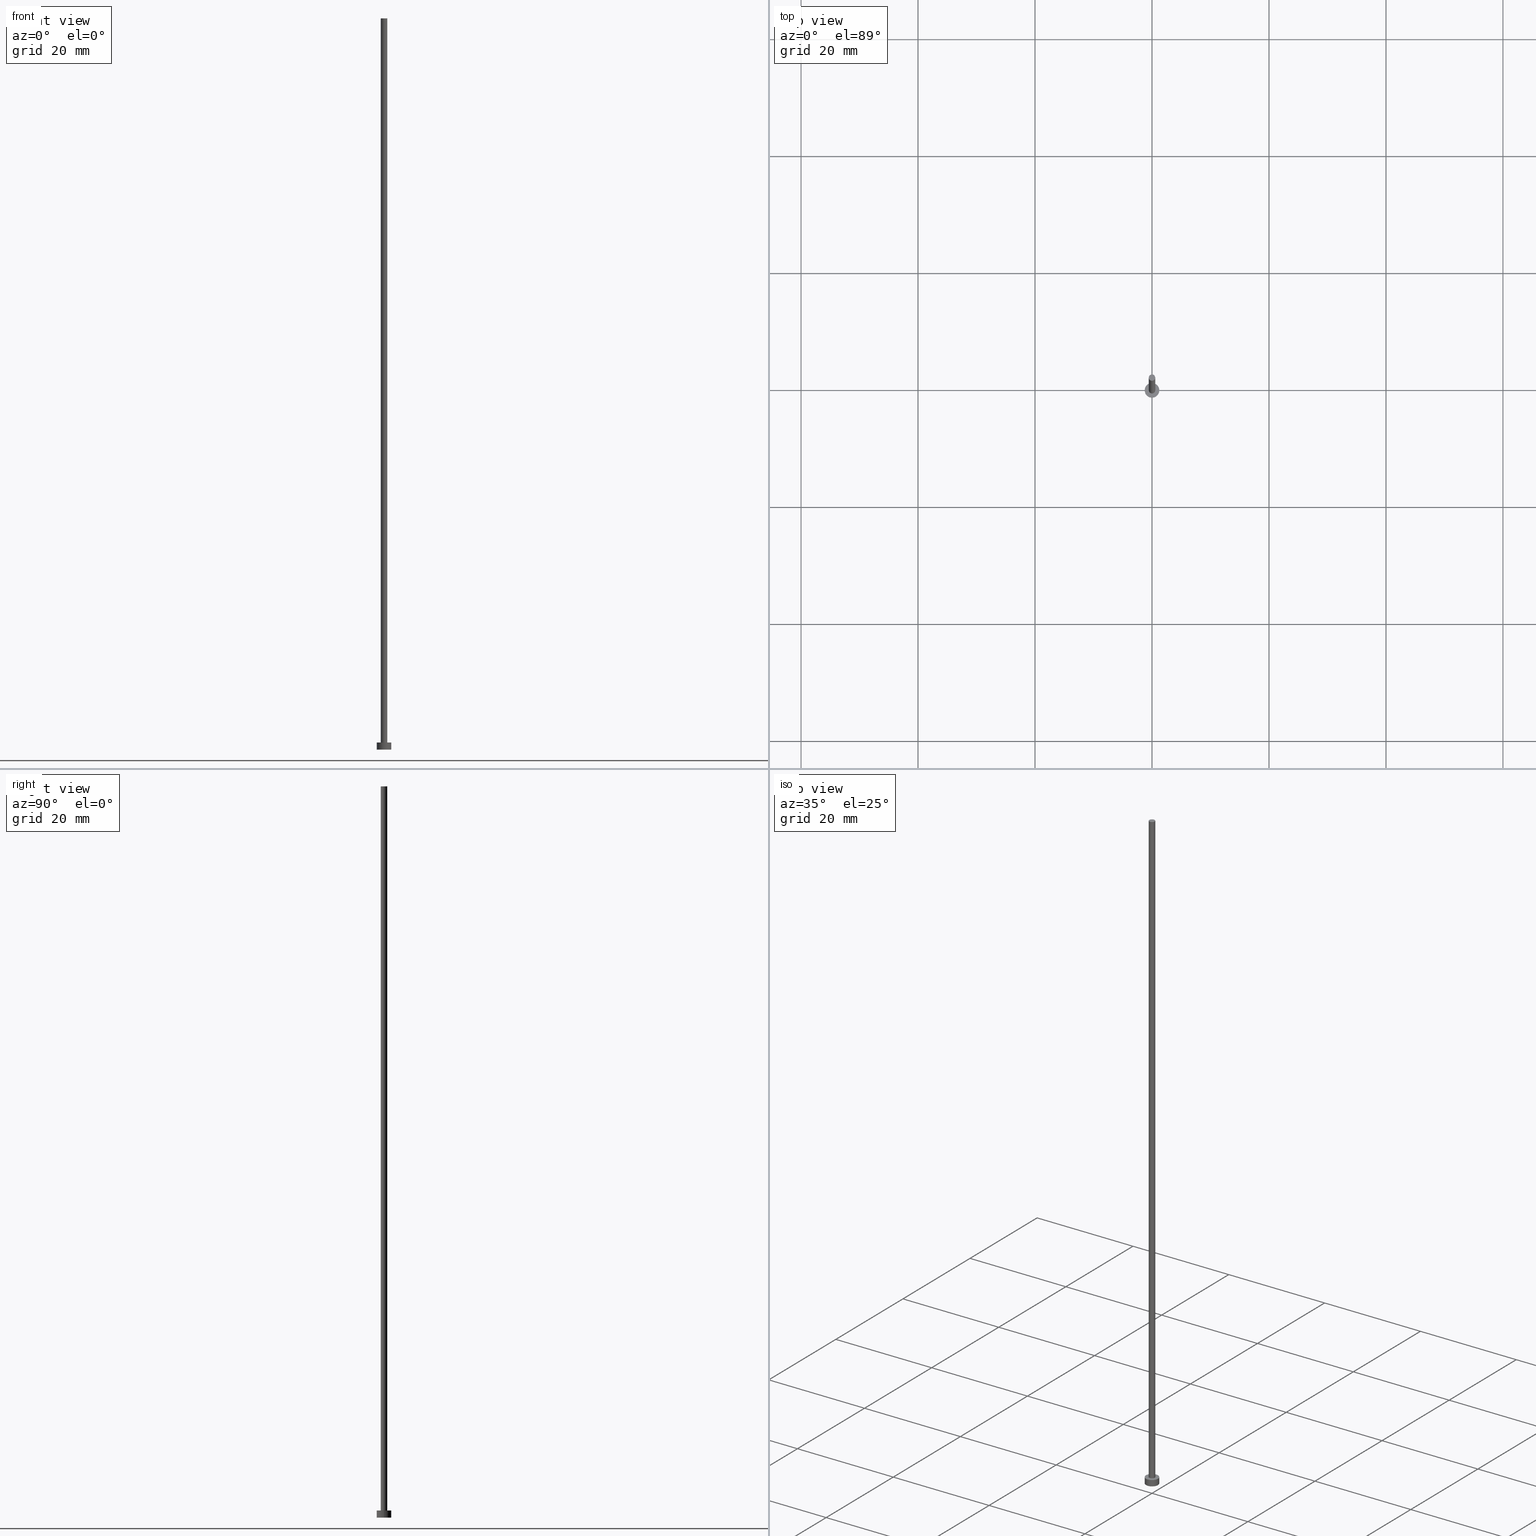
[diagram: canonical four-view strip — front | top / right | iso, engineering-drawing reading convention]
A machine part, canonical four-view strip (front | top / right | iso — engineering-drawing reading convention). The complete STEP part file that produces these views, byte-faithful:
ISO-10303-21;
HEADER;
FILE_DESCRIPTION (( 'STEP AP203' ),
    '1' );
FILE_NAME ('17de.STEP',
    '2023-02-12T12:59:51',
    ( '' ),
    ( '' ),
    'SwSTEP 2.0',
    'SolidWorks 2019',
    '' );
FILE_SCHEMA (( 'CONFIG_CONTROL_DESIGN' ));
ENDSEC;

DATA;
#1 = DIRECTION ( 'NONE',  ( 0.000000000000000000, 0.000000000000000000, 1.000000000000000000 ) ) ;
#2 = DIRECTION ( 'NONE',  ( 1.000000000000000000, 0.000000000000000000, -0.000000000000000000 ) ) ;
#3 = VERTEX_POINT ( 'NONE', #113 ) ;
#4 = CARTESIAN_POINT ( 'NONE',  ( 0.000000000000000000, 0.000000000000000000, 1.199999999999999956 ) ) ;
#5 = LOCAL_TIME ( 13, 59, 51.00000000000000000, #241 ) ;
#6 = PERSON_AND_ORGANIZATION ( #149, #98 ) ;
#7 = VERTEX_POINT ( 'NONE', #173 ) ;
#8 = APPROVAL_PERSON_ORGANIZATION ( #102, #68, #197 ) ;
#9 = CALENDAR_DATE ( 2023, 12, 2 ) ;
#10 = FACE_OUTER_BOUND ( 'NONE', #48, .T. ) ;
#11 = FACE_OUTER_BOUND ( 'NONE', #96, .T. ) ;
#12 = LOCAL_TIME ( 13, 59, 51.00000000000000000, #72 ) ;
#13 = CARTESIAN_POINT ( 'NONE',  ( 0.000000000000000000, 0.000000000000000000, 0.000000000000000000 ) ) ;
#14 = EDGE_CURVE ( 'NONE', #196, #90, #37, .T. ) ;
#15 = DIRECTION ( 'NONE',  ( 1.000000000000000000, 0.000000000000000000, 0.000000000000000000 ) ) ;
#16 = CARTESIAN_POINT ( 'NONE',  ( 0.000000000000000000, 0.000000000000000000, 1.199999999999999956 ) ) ;
#17 = AXIS2_PLACEMENT_3D ( 'NONE', #62, #146, #131 ) ;
#18 = ORIENTED_EDGE ( 'NONE', *, *, #39, .T. ) ;
#19 = ADVANCED_FACE ( 'NONE', ( #69, #240 ), #214, .T. ) ;
#20 = ORIENTED_EDGE ( 'NONE', *, *, #164, .F. ) ;
#21 = ORIENTED_EDGE ( 'NONE', *, *, #237, .F. ) ;
#22 = ORIENTED_EDGE ( 'NONE', *, *, #156, .T. ) ;
#23 = ORIENTED_EDGE ( 'NONE', *, *, #156, .F. ) ;
#24 = DIRECTION ( 'NONE',  ( 1.000000000000000000, 0.000000000000000000, 0.000000000000000000 ) ) ;
#25 = CARTESIAN_POINT ( 'NONE',  ( 0.000000000000000000, 0.000000000000000000, 0.000000000000000000 ) ) ;
#26 = ADVANCED_FACE ( 'NONE', ( #10 ), #140, .F. ) ;
#27 = DIRECTION ( 'NONE',  ( 0.000000000000000000, 0.000000000000000000, 1.000000000000000000 ) ) ;
#28 = CARTESIAN_POINT ( 'NONE',  ( 0.5500000000000000444, 6.735557395310442516E-17, 125.0000000000000000 ) ) ;
#29 = DATE_AND_TIME ( #163, #127 ) ;
#30 =( LENGTH_UNIT ( ) NAMED_UNIT ( * ) SI_UNIT ( .MILLI., .METRE. ) );
#31 = PERSON_AND_ORGANIZATION ( #149, #98 ) ;
#32 = CYLINDRICAL_SURFACE ( 'NONE', #199, 0.5500000000000000444 ) ;
#33 = EDGE_CURVE ( 'NONE', #78, #242, #134, .T. ) ;
#34 = EDGE_LOOP ( 'NONE', ( #70, #234 ) ) ;
#35 = CARTESIAN_POINT ( 'NONE',  ( 0.000000000000000000, 0.000000000000000000, 1.199999999999999956 ) ) ;
#36 = ORIENTED_EDGE ( 'NONE', *, *, #104, .T. ) ;
#37 = CIRCLE ( 'NONE', #190, 0.5500000000000000444 ) ;
#38 = AXIS2_PLACEMENT_3D ( 'NONE', #84, #235, #233 ) ;
#39 = EDGE_CURVE ( 'NONE', #242, #78, #114, .T. ) ;
#40 = APPLICATION_PROTOCOL_DEFINITION ( 'international standard', 'config_control_design', 1994, #186 ) ;
#41 = DIRECTION ( 'NONE',  ( 1.000000000000000000, 0.000000000000000000, 0.000000000000000000 ) ) ;
#42 = CARTESIAN_POINT ( 'NONE',  ( -1.250000000000000000, 0.000000000000000000, 1.199999999999999956 ) ) ;
#43 = CARTESIAN_POINT ( 'NONE',  ( -0.5500000000000000444, 0.000000000000000000, 1.199999999999999956 ) ) ;
#44 = CLOSED_SHELL ( 'NONE', ( #194, #79, #182, #19, #26, #57, #254 ) ) ;
#45 = PERSON_AND_ORGANIZATION ( #149, #98 ) ;
#46 = PLANE ( 'NONE',  #236 ) ;
#47 = DIRECTION ( 'NONE',  ( -1.000000000000000000, 0.000000000000000000, 0.000000000000000000 ) ) ;
#48 = EDGE_LOOP ( 'NONE', ( #51, #115 ) ) ;
#49 = DATE_AND_TIME ( #172, #5 ) ;
#50 =( NAMED_UNIT ( * ) SI_UNIT ( $, .STERADIAN. ) SOLID_ANGLE_UNIT ( ) );
#51 = ORIENTED_EDGE ( 'NONE', *, *, #33, .F. ) ;
#52 = EDGE_CURVE ( 'NONE', #3, #7, #206, .T. ) ;
#53 = ORIENTED_EDGE ( 'NONE', *, *, #137, .F. ) ;
#54 = DATE_AND_TIME ( #9, #151 ) ;
#55 = PERSON_AND_ORGANIZATION_ROLE ( 'creator' ) ;
#56 = AXIS2_PLACEMENT_3D ( 'NONE', #228, #250, #15 ) ;
#57 = ADVANCED_FACE ( 'NONE', ( #59 ), #75, .T. ) ;
#58 = CIRCLE ( 'NONE', #38, 0.5500000000000000444 ) ;
#59 = FACE_OUTER_BOUND ( 'NONE', #168, .T. ) ;
#60 = DESIGN_CONTEXT ( 'detailed design', #138, 'design' ) ;
#61 = APPROVAL_STATUS ( 'not_yet_approved' ) ;
#62 = CARTESIAN_POINT ( 'NONE',  ( 0.000000000000000000, 0.000000000000000000, 1.199999999999999956 ) ) ;
#63 = VECTOR ( 'NONE', #183, 1000.000000000000000 ) ;
#64 = CIRCLE ( 'NONE', #175, 1.250000000000000000 ) ;
#65 = CARTESIAN_POINT ( 'NONE',  ( 0.5500000000000000444, 6.735557395310442516E-17, 1.199999999999999956 ) ) ;
#66 = CARTESIAN_POINT ( 'NONE',  ( 0.000000000000000000, 0.000000000000000000, 125.0000000000000000 ) ) ;
#67 = CC_DESIGN_APPROVAL ( #230, ( #170 ) ) ;
#68 = APPROVAL ( #166, 'NEUR�EN�' ) ;
#69 = FACE_BOUND ( 'NONE', #83, .T. ) ;
#70 = ORIENTED_EDGE ( 'NONE', *, *, #164, .T. ) ;
#71 = APPROVAL_PERSON_ORGANIZATION ( #121, #230, #99 ) ;
#72 = COORDINATED_UNIVERSAL_TIME_OFFSET ( 1, 0, .AHEAD. ) ;
#73 = VERTEX_POINT ( 'NONE', #28 ) ;
#74 = CC_DESIGN_PERSON_AND_ORGANIZATION_ASSIGNMENT ( #45, #205, ( #170 ) ) ;
#75 = CYLINDRICAL_SURFACE ( 'NONE', #218, 0.5500000000000000444 ) ;
#76 = DIRECTION ( 'NONE',  ( 1.000000000000000000, 0.000000000000000000, 0.000000000000000000 ) ) ;
#77 = CARTESIAN_POINT ( 'NONE',  ( 0.000000000000000000, 0.000000000000000000, 0.000000000000000000 ) ) ;
#78 = VERTEX_POINT ( 'NONE', #227 ) ;
#79 = ADVANCED_FACE ( 'NONE', ( #11 ), #103, .T. ) ;
#80 = APPROVAL_DATE_TIME ( #222, #230 ) ;
#81 = DIRECTION ( 'NONE',  ( 1.000000000000000000, 0.000000000000000000, -0.000000000000000000 ) ) ;
#82 =( NAMED_UNIT ( * ) PLANE_ANGLE_UNIT ( ) SI_UNIT ( $, .RADIAN. ) );
#83 = EDGE_LOOP ( 'NONE', ( #21, #165 ) ) ;
#84 = CARTESIAN_POINT ( 'NONE',  ( 0.000000000000000000, 0.000000000000000000, 125.0000000000000000 ) ) ;
#85 = AXIS2_PLACEMENT_3D ( 'NONE', #35, #91, #81 ) ;
#86 = VECTOR ( 'NONE', #193, 1000.000000000000000 ) ;
#87 = DIRECTION ( 'NONE',  ( -0.000000000000000000, -0.000000000000000000, -1.000000000000000000 ) ) ;
#88 = PRODUCT ( '17de', '17de', '', ( #184 ) ) ;
#89 = PERSON_AND_ORGANIZATION_ROLE ( 'classification_officer' ) ;
#90 = VERTEX_POINT ( 'NONE', #43 ) ;
#91 = DIRECTION ( 'NONE',  ( 0.000000000000000000, 0.000000000000000000, 1.000000000000000000 ) ) ;
#92 = AXIS2_PLACEMENT_3D ( 'NONE', #126, #162, #41 ) ;
#93 = DIRECTION ( 'NONE',  ( 1.000000000000000000, 0.000000000000000000, 0.000000000000000000 ) ) ;
#94 = ORIENTED_EDGE ( 'NONE', *, *, #33, .T. ) ;
#95 = CC_DESIGN_PERSON_AND_ORGANIZATION_ASSIGNMENT ( #6, #124, ( #88 ) ) ;
#96 = EDGE_LOOP ( 'NONE', ( #207, #247, #18, #112 ) ) ;
#97 = APPLICATION_PROTOCOL_DEFINITION ( 'international standard', 'config_control_design', 1994, #138 ) ;
#98 = ORGANIZATION ( 'NEUR�EN�', 'NEUR�EN�', '' ) ;
#99 = APPROVAL_ROLE ( '' ) ;
#100 = CARTESIAN_POINT ( 'NONE',  ( 0.5500000000000000444, 6.735557395310442516E-17, 125.0000000000000000 ) ) ;
#101 = UNCERTAINTY_MEASURE_WITH_UNIT (LENGTH_MEASURE( 1.000000000000000082E-05 ), #30, 'distance_accuracy_value', 'NONE');
#102 = PERSON_AND_ORGANIZATION ( #149, #98 ) ;
#103 = CYLINDRICAL_SURFACE ( 'NONE', #229, 1.250000000000000000 ) ;
#104 = EDGE_CURVE ( 'NONE', #73, #217, #245, .T. ) ;
#105 = CARTESIAN_POINT ( 'NONE',  ( 0.000000000000000000, 0.000000000000000000, 1.199999999999999956 ) ) ;
#106 = CARTESIAN_POINT ( 'NONE',  ( -0.5500000000000000444, 0.000000000000000000, 125.0000000000000000 ) ) ;
#107 = AXIS2_PLACEMENT_3D ( 'NONE', #13, #225, #201 ) ;
#108 = CC_DESIGN_SECURITY_CLASSIFICATION ( #226, ( #170 ) ) ;
#109 = CYLINDRICAL_SURFACE ( 'NONE', #154, 1.250000000000000000 ) ;
#110 = CC_DESIGN_DATE_AND_TIME_ASSIGNMENT ( #54, #180, ( #219 ) ) ;
#111 = CC_DESIGN_APPROVAL ( #169, ( #219 ) ) ;
#112 = ORIENTED_EDGE ( 'NONE', *, *, #119, .F. ) ;
#113 = CARTESIAN_POINT ( 'NONE',  ( 1.250000000000000000, 1.530808498934191571E-16, 1.199999999999999956 ) ) ;
#114 = CIRCLE ( 'NONE', #56, 1.250000000000000000 ) ;
#115 = ORIENTED_EDGE ( 'NONE', *, *, #39, .F. ) ;
#116 =( GEOMETRIC_REPRESENTATION_CONTEXT ( 3 ) GLOBAL_UNCERTAINTY_ASSIGNED_CONTEXT ( ( #101 ) ) GLOBAL_UNIT_ASSIGNED_CONTEXT ( ( #30, #82, #50 ) ) REPRESENTATION_CONTEXT ( 'NONE', 'WORKASPACE' ) );
#117 = EDGE_LOOP ( 'NONE', ( #192, #36 ) ) ;
#118 = DIRECTION ( 'NONE',  ( 0.000000000000000000, 0.000000000000000000, 1.000000000000000000 ) ) ;
#119 = EDGE_CURVE ( 'NONE', #7, #78, #142, .T. ) ;
#120 = ADVANCED_BREP_SHAPE_REPRESENTATION ( '17de', ( #243, #159 ), #116 ) ;
#121 = PERSON_AND_ORGANIZATION ( #149, #98 ) ;
#122 = DIRECTION ( 'NONE',  ( -0.000000000000000000, -0.000000000000000000, -1.000000000000000000 ) ) ;
#123 = LINE ( 'NONE', #129, #210 ) ;
#124 = PERSON_AND_ORGANIZATION_ROLE ( 'design_owner' ) ;
#125 = CC_DESIGN_PERSON_AND_ORGANIZATION_ASSIGNMENT ( #200, #55, ( #219 ) ) ;
#126 = CARTESIAN_POINT ( 'NONE',  ( 0.000000000000000000, 0.000000000000000000, 1.199999999999999956 ) ) ;
#127 = LOCAL_TIME ( 13, 59, 51.00000000000000000, #213 ) ;
#128 = DATE_TIME_ROLE ( 'classification_date' ) ;
#129 = CARTESIAN_POINT ( 'NONE',  ( 1.250000000000000000, 1.530808498934191571E-16, 1.199999999999999956 ) ) ;
#130 = CIRCLE ( 'NONE', #17, 0.5500000000000000444 ) ;
#131 = DIRECTION ( 'NONE',  ( 1.000000000000000000, 0.000000000000000000, 0.000000000000000000 ) ) ;
#132 = LINE ( 'NONE', #106, #86 ) ;
#133 = ORIENTED_EDGE ( 'NONE', *, *, #119, .T. ) ;
#134 = CIRCLE ( 'NONE', #141, 1.250000000000000000 ) ;
#135 = DIRECTION ( 'NONE',  ( 0.000000000000000000, 0.000000000000000000, 1.000000000000000000 ) ) ;
#136 = SECURITY_CLASSIFICATION_LEVEL ( 'unclassified' ) ;
#137 = EDGE_CURVE ( 'NONE', #73, #196, #203, .T. ) ;
#138 = APPLICATION_CONTEXT ( 'configuration controlled 3d designs of mechanical parts and assemblies' ) ;
#139 = CALENDAR_DATE ( 2023, 12, 2 ) ;
#140 = PLANE ( 'NONE',  #107 ) ;
#141 = AXIS2_PLACEMENT_3D ( 'NONE', #77, #27, #76 ) ;
#142 = LINE ( 'NONE', #42, #178 ) ;
#143 = APPROVAL_PERSON_ORGANIZATION ( #224, #169, #249 ) ;
#144 = DIRECTION ( 'NONE',  ( -1.000000000000000000, 0.000000000000000000, 0.000000000000000000 ) ) ;
#145 = SHAPE_DEFINITION_REPRESENTATION ( #174, #120 ) ;
#146 = DIRECTION ( 'NONE',  ( 0.000000000000000000, 0.000000000000000000, 1.000000000000000000 ) ) ;
#147 = AXIS2_PLACEMENT_3D ( 'NONE', #253, #118, #24 ) ;
#148 = FACE_OUTER_BOUND ( 'NONE', #221, .T. ) ;
#149 = PERSON ( 'NEUR�EN�', 'NEUR�EN�', 'NEUR�EN�', ('NEUR�EN�'), ('NEUR�EN�'), ('NEUR�EN�') ) ;
#150 = DIRECTION ( 'NONE',  ( -0.000000000000000000, -0.000000000000000000, -1.000000000000000000 ) ) ;
#151 = LOCAL_TIME ( 13, 59, 51.00000000000000000, #179 ) ;
#152 = EDGE_CURVE ( 'NONE', #3, #242, #123, .T. ) ;
#153 = ORIENTED_EDGE ( 'NONE', *, *, #152, .F. ) ;
#154 = AXIS2_PLACEMENT_3D ( 'NONE', #16, #195, #188 ) ;
#155 = ORIENTED_EDGE ( 'NONE', *, *, #104, .F. ) ;
#156 = EDGE_CURVE ( 'NONE', #217, #90, #132, .T. ) ;
#157 = CALENDAR_DATE ( 2023, 12, 2 ) ;
#158 = EDGE_LOOP ( 'NONE', ( #153, #20, #133, #94 ) ) ;
#159 = AXIS2_PLACEMENT_3D ( 'NONE', #25, #252, #177 ) ;
#160 = CC_DESIGN_PERSON_AND_ORGANIZATION_ASSIGNMENT ( #189, #89, ( #226 ) ) ;
#161 = DIRECTION ( 'NONE',  ( -0.000000000000000000, -0.000000000000000000, -1.000000000000000000 ) ) ;
#162 = DIRECTION ( 'NONE',  ( 0.000000000000000000, 0.000000000000000000, 1.000000000000000000 ) ) ;
#163 = CALENDAR_DATE ( 2023, 12, 2 ) ;
#164 = EDGE_CURVE ( 'NONE', #7, #3, #64, .T. ) ;
#165 = ORIENTED_EDGE ( 'NONE', *, *, #14, .F. ) ;
#166 = APPROVAL_STATUS ( 'not_yet_approved' ) ;
#167 = CARTESIAN_POINT ( 'NONE',  ( 0.000000000000000000, 0.000000000000000000, 125.0000000000000000 ) ) ;
#168 = EDGE_LOOP ( 'NONE', ( #53, #176, #22, #198 ) ) ;
#169 = APPROVAL ( #61, 'NEUR�EN�' ) ;
#170 = PRODUCT_DEFINITION_FORMATION_WITH_SPECIFIED_SOURCE ( 'LIBOVOLN�', '', #88, .NOT_KNOWN. ) ;
#171 = CARTESIAN_POINT ( 'NONE',  ( -0.5500000000000000444, 0.000000000000000000, 125.0000000000000000 ) ) ;
#172 = CALENDAR_DATE ( 2023, 12, 2 ) ;
#173 = CARTESIAN_POINT ( 'NONE',  ( -1.250000000000000000, 0.000000000000000000, 1.199999999999999956 ) ) ;
#174 = PRODUCT_DEFINITION_SHAPE ( 'NONE', 'NONE',  #219 ) ;
#175 = AXIS2_PLACEMENT_3D ( 'NONE', #105, #1, #209 ) ;
#176 = ORIENTED_EDGE ( 'NONE', *, *, #212, .F. ) ;
#177 = DIRECTION ( 'NONE',  ( 1.000000000000000000, 0.000000000000000000, 0.000000000000000000 ) ) ;
#178 = VECTOR ( 'NONE', #122, 1000.000000000000000 ) ;
#179 = COORDINATED_UNIVERSAL_TIME_OFFSET ( 1, 0, .AHEAD. ) ;
#180 = DATE_TIME_ROLE ( 'creation_date' ) ;
#181 = COORDINATED_UNIVERSAL_TIME_OFFSET ( 1, 0, .AHEAD. ) ;
#182 = ADVANCED_FACE ( 'NONE', ( #208 ), #109, .T. ) ;
#183 = DIRECTION ( 'NONE',  ( -0.000000000000000000, -0.000000000000000000, -1.000000000000000000 ) ) ;
#184 = MECHANICAL_CONTEXT ( 'NONE', #186, 'mechanical' ) ;
#185 = LOCAL_TIME ( 13, 59, 51.00000000000000000, #181 ) ;
#186 = APPLICATION_CONTEXT ( 'configuration controlled 3d designs of mechanical parts and assemblies' ) ;
#187 = CARTESIAN_POINT ( 'NONE',  ( 0.000000000000000000, 0.000000000000000000, 1.199999999999999956 ) ) ;
#188 = DIRECTION ( 'NONE',  ( -1.000000000000000000, 0.000000000000000000, 0.000000000000000000 ) ) ;
#189 = PERSON_AND_ORGANIZATION ( #149, #98 ) ;
#190 = AXIS2_PLACEMENT_3D ( 'NONE', #4, #135, #93 ) ;
#191 = DIRECTION ( 'NONE',  ( 0.000000000000000000, 0.000000000000000000, 1.000000000000000000 ) ) ;
#192 = ORIENTED_EDGE ( 'NONE', *, *, #212, .T. ) ;
#193 = DIRECTION ( 'NONE',  ( -0.000000000000000000, -0.000000000000000000, -1.000000000000000000 ) ) ;
#194 = ADVANCED_FACE ( 'NONE', ( #148 ), #32, .T. ) ;
#195 = DIRECTION ( 'NONE',  ( -0.000000000000000000, -0.000000000000000000, -1.000000000000000000 ) ) ;
#196 = VERTEX_POINT ( 'NONE', #65 ) ;
#197 = APPROVAL_ROLE ( '' ) ;
#198 = ORIENTED_EDGE ( 'NONE', *, *, #237, .T. ) ;
#199 = AXIS2_PLACEMENT_3D ( 'NONE', #66, #87, #47 ) ;
#200 = PERSON_AND_ORGANIZATION ( #149, #98 ) ;
#201 = DIRECTION ( 'NONE',  ( 1.000000000000000000, 0.000000000000000000, -0.000000000000000000 ) ) ;
#202 = APPROVAL_STATUS ( 'not_yet_approved' ) ;
#203 = LINE ( 'NONE', #100, #63 ) ;
#204 = DIRECTION ( 'NONE',  ( -0.000000000000000000, -0.000000000000000000, -1.000000000000000000 ) ) ;
#205 = PERSON_AND_ORGANIZATION_ROLE ( 'creator' ) ;
#206 = CIRCLE ( 'NONE', #92, 1.250000000000000000 ) ;
#207 = ORIENTED_EDGE ( 'NONE', *, *, #52, .F. ) ;
#208 = FACE_OUTER_BOUND ( 'NONE', #158, .T. ) ;
#209 = DIRECTION ( 'NONE',  ( 1.000000000000000000, 0.000000000000000000, 0.000000000000000000 ) ) ;
#210 = VECTOR ( 'NONE', #150, 1000.000000000000000 ) ;
#211 = ORIENTED_EDGE ( 'NONE', *, *, #14, .T. ) ;
#212 = EDGE_CURVE ( 'NONE', #217, #73, #58, .T. ) ;
#213 = COORDINATED_UNIVERSAL_TIME_OFFSET ( 1, 0, .AHEAD. ) ;
#214 = PLANE ( 'NONE',  #85 ) ;
#215 = PRODUCT_RELATED_PRODUCT_CATEGORY ( 'detail', '', ( #88 ) ) ;
#216 = PERSON_AND_ORGANIZATION_ROLE ( 'design_supplier' ) ;
#217 = VERTEX_POINT ( 'NONE', #171 ) ;
#218 = AXIS2_PLACEMENT_3D ( 'NONE', #223, #204, #144 ) ;
#219 = PRODUCT_DEFINITION ( 'NEZN�M�', '', #170, #60 ) ;
#220 = CC_DESIGN_APPROVAL ( #68, ( #226 ) ) ;
#221 = EDGE_LOOP ( 'NONE', ( #155, #244, #211, #23 ) ) ;
#222 = DATE_AND_TIME ( #139, #185 ) ;
#223 = CARTESIAN_POINT ( 'NONE',  ( 0.000000000000000000, 0.000000000000000000, 125.0000000000000000 ) ) ;
#224 = PERSON_AND_ORGANIZATION ( #149, #98 ) ;
#225 = DIRECTION ( 'NONE',  ( 0.000000000000000000, 0.000000000000000000, 1.000000000000000000 ) ) ;
#226 = SECURITY_CLASSIFICATION ( '', '', #136 ) ;
#227 = CARTESIAN_POINT ( 'NONE',  ( -1.250000000000000000, 0.000000000000000000, 0.000000000000000000 ) ) ;
#228 = CARTESIAN_POINT ( 'NONE',  ( 0.000000000000000000, 0.000000000000000000, 0.000000000000000000 ) ) ;
#229 = AXIS2_PLACEMENT_3D ( 'NONE', #187, #161, #255 ) ;
#230 = APPROVAL ( #202, 'NEUR�EN�' ) ;
#231 = FACE_OUTER_BOUND ( 'NONE', #117, .T. ) ;
#232 = CARTESIAN_POINT ( 'NONE',  ( 1.250000000000000000, 1.530808498934191571E-16, 0.000000000000000000 ) ) ;
#233 = DIRECTION ( 'NONE',  ( 1.000000000000000000, 0.000000000000000000, 0.000000000000000000 ) ) ;
#234 = ORIENTED_EDGE ( 'NONE', *, *, #52, .T. ) ;
#235 = DIRECTION ( 'NONE',  ( 0.000000000000000000, 0.000000000000000000, 1.000000000000000000 ) ) ;
#236 = AXIS2_PLACEMENT_3D ( 'NONE', #167, #191, #2 ) ;
#237 = EDGE_CURVE ( 'NONE', #90, #196, #130, .T. ) ;
#238 = APPROVAL_DATE_TIME ( #29, #68 ) ;
#239 = CC_DESIGN_DATE_AND_TIME_ASSIGNMENT ( #49, #128, ( #226 ) ) ;
#240 = FACE_OUTER_BOUND ( 'NONE', #34, .T. ) ;
#241 = COORDINATED_UNIVERSAL_TIME_OFFSET ( 1, 0, .AHEAD. ) ;
#242 = VERTEX_POINT ( 'NONE', #232 ) ;
#243 = MANIFOLD_SOLID_BREP ( 'P�idat vysunut�m3', #44 ) ;
#244 = ORIENTED_EDGE ( 'NONE', *, *, #137, .T. ) ;
#245 = CIRCLE ( 'NONE', #147, 0.5500000000000000444 ) ;
#246 = DATE_AND_TIME ( #157, #12 ) ;
#247 = ORIENTED_EDGE ( 'NONE', *, *, #152, .T. ) ;
#248 = APPROVAL_DATE_TIME ( #246, #169 ) ;
#249 = APPROVAL_ROLE ( '' ) ;
#250 = DIRECTION ( 'NONE',  ( 0.000000000000000000, 0.000000000000000000, 1.000000000000000000 ) ) ;
#251 = CC_DESIGN_PERSON_AND_ORGANIZATION_ASSIGNMENT ( #31, #216, ( #170 ) ) ;
#252 = DIRECTION ( 'NONE',  ( 0.000000000000000000, 0.000000000000000000, 1.000000000000000000 ) ) ;
#253 = CARTESIAN_POINT ( 'NONE',  ( 0.000000000000000000, 0.000000000000000000, 125.0000000000000000 ) ) ;
#254 = ADVANCED_FACE ( 'NONE', ( #231 ), #46, .T. ) ;
#255 = DIRECTION ( 'NONE',  ( -1.000000000000000000, 0.000000000000000000, 0.000000000000000000 ) ) ;
ENDSEC;
END-ISO-10303-21;
